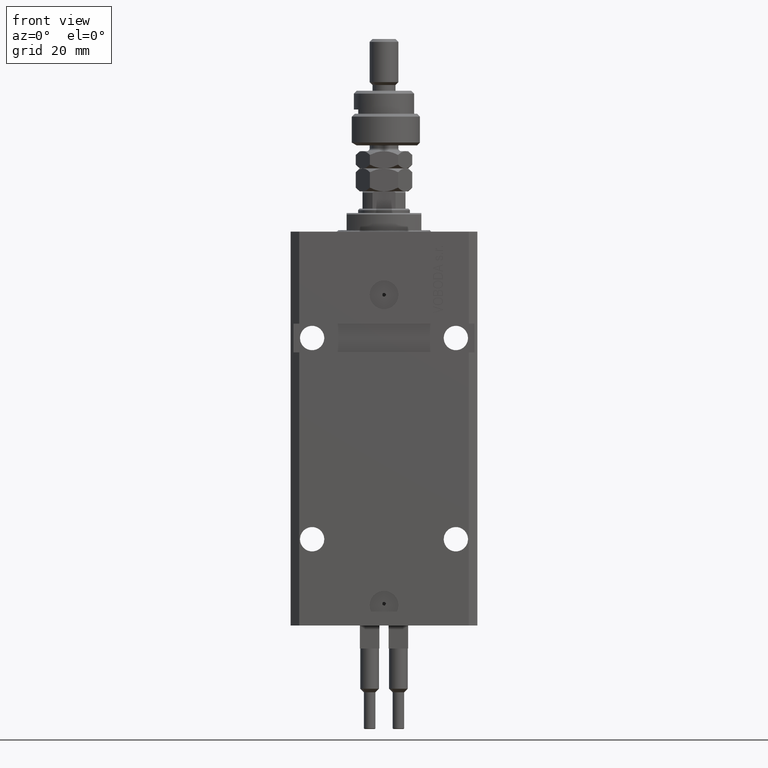
[diagram: clean part render]
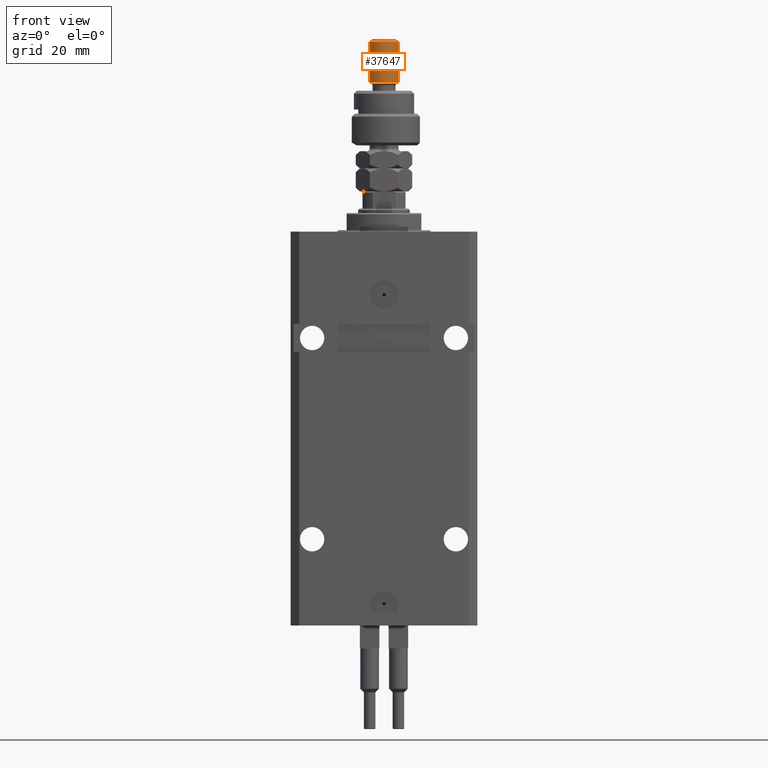
[diagram: same view with one face highlighted and labeled with its STEP entity id]
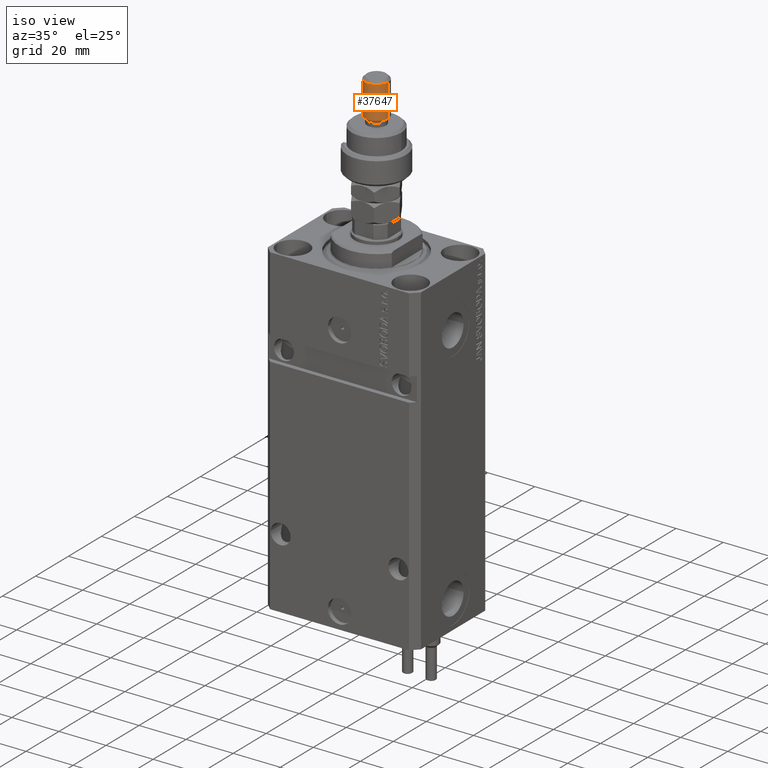
[diagram: same view with one face highlighted and labeled with its STEP entity id]
A machine part, front view. The second image highlights one B-rep face of the part: STEP entity #37647.
A second angle (iso view) of the same face is appended — the face is thin or edge-on in the first view.
In plain terms, the highlighted cylindrical surface (edge-blend (fillet) strip) has radius 5 mm, axis along (-0, -0, -1).
Its self-contained STEP definition (entity closure, byte-faithful):
#999 = ORIENTED_EDGE ( 'NONE', *, *, #10956, .T. ) ;
#1576 = CYLINDRICAL_SURFACE ( 'NONE', #50606, 5.000000000000000888 ) ;
#1675 = LINE ( 'NONE', #38031, #19054 ) ;
#2058 = CARTESIAN_POINT ( 'NONE',  ( 0.000000000000000000, 0.000000000000000000, 21.99999999999999289 ) ) ;
#2250 = ORIENTED_EDGE ( 'NONE', *, *, #23686, .T. ) ;
#4563 = AXIS2_PLACEMENT_3D ( 'NONE', #19750, #31956, #48313 ) ;
#4751 = CARTESIAN_POINT ( 'NONE',  ( 5.000000000000000888, 6.123233995736767268E-16, 36.00000000000000711 ) ) ;
#5642 = CARTESIAN_POINT ( 'NONE',  ( 5.000000000000000888, 6.123233995736767268E-16, 37.00000000000000000 ) ) ;
#5838 = DIRECTION ( 'NONE',  ( -0.000000000000000000, -0.000000000000000000, -1.000000000000000000 ) ) ;
#6489 = VERTEX_POINT ( 'NONE', #4751 ) ;
#9535 = LINE ( 'NONE', #5642, #16977 ) ;
#10382 = CIRCLE ( 'NONE', #4563, 5.000000000000000888 ) ;
#10956 = EDGE_CURVE ( 'NONE', #44645, #21378, #31592, .T. ) ;
#11305 = EDGE_LOOP ( 'NONE', ( #49289, #2250, #47041, #999 ) ) ;
#12378 = VERTEX_POINT ( 'NONE', #15428 ) ;
#12739 = DIRECTION ( 'NONE',  ( -0.000000000000000000, -0.000000000000000000, -1.000000000000000000 ) ) ;
#14027 = CARTESIAN_POINT ( 'NONE',  ( -5.000000000000000888, 0.000000000000000000, 21.99999999999999289 ) ) ;
#15428 = CARTESIAN_POINT ( 'NONE',  ( -5.000000000000000888, 0.000000000000000000, 36.00000000000000711 ) ) ;
#16901 = CARTESIAN_POINT ( 'NONE',  ( 0.000000000000000000, 0.000000000000000000, 37.00000000000000000 ) ) ;
#16977 = VECTOR ( 'NONE', #49519, 1000.000000000000000 ) ;
#19054 = VECTOR ( 'NONE', #5838, 1000.000000000000000 ) ;
#19750 = CARTESIAN_POINT ( 'NONE',  ( 0.000000000000000000, 0.000000000000000000, 36.00000000000000711 ) ) ;
#21378 = VERTEX_POINT ( 'NONE', #46663 ) ;
#23686 = EDGE_CURVE ( 'NONE', #6489, #12378, #10382, .T. ) ;
#25423 = DIRECTION ( 'NONE',  ( -0.000000000000000000, -0.000000000000000000, 1.000000000000000000 ) ) ;
#31592 = CIRCLE ( 'NONE', #44881, 5.000000000000000888 ) ;
#31956 = DIRECTION ( 'NONE',  ( 0.000000000000000000, 0.000000000000000000, -1.000000000000000000 ) ) ;
#33265 = DIRECTION ( 'NONE',  ( -1.000000000000000000, 0.000000000000000000, 0.000000000000000000 ) ) ;
#35987 = EDGE_CURVE ( 'NONE', #12378, #44645, #1675, .T. ) ;
#37167 = FACE_OUTER_BOUND ( 'NONE', #11305, .T. ) ;
#37647 = ADVANCED_FACE ( 'NONE', ( #37167 ), #1576, .T. ) ;
#38031 = CARTESIAN_POINT ( 'NONE',  ( -5.000000000000000888, 0.000000000000000000, 37.00000000000000000 ) ) ;
#41281 = DIRECTION ( 'NONE',  ( 1.000000000000000000, 0.000000000000000000, 0.000000000000000000 ) ) ;
#44645 = VERTEX_POINT ( 'NONE', #14027 ) ;
#44881 = AXIS2_PLACEMENT_3D ( 'NONE', #2058, #25423, #41281 ) ;
#46663 = CARTESIAN_POINT ( 'NONE',  ( 5.000000000000000888, 6.123233995736767268E-16, 21.99999999999999289 ) ) ;
#47041 = ORIENTED_EDGE ( 'NONE', *, *, #35987, .T. ) ;
#48313 = DIRECTION ( 'NONE',  ( 1.000000000000000000, 0.000000000000000000, 0.000000000000000000 ) ) ;
#49289 = ORIENTED_EDGE ( 'NONE', *, *, #50116, .F. ) ;
#49519 = DIRECTION ( 'NONE',  ( -0.000000000000000000, -0.000000000000000000, -1.000000000000000000 ) ) ;
#50116 = EDGE_CURVE ( 'NONE', #6489, #21378, #9535, .T. ) ;
#50606 = AXIS2_PLACEMENT_3D ( 'NONE', #16901, #12739, #33265 ) ;